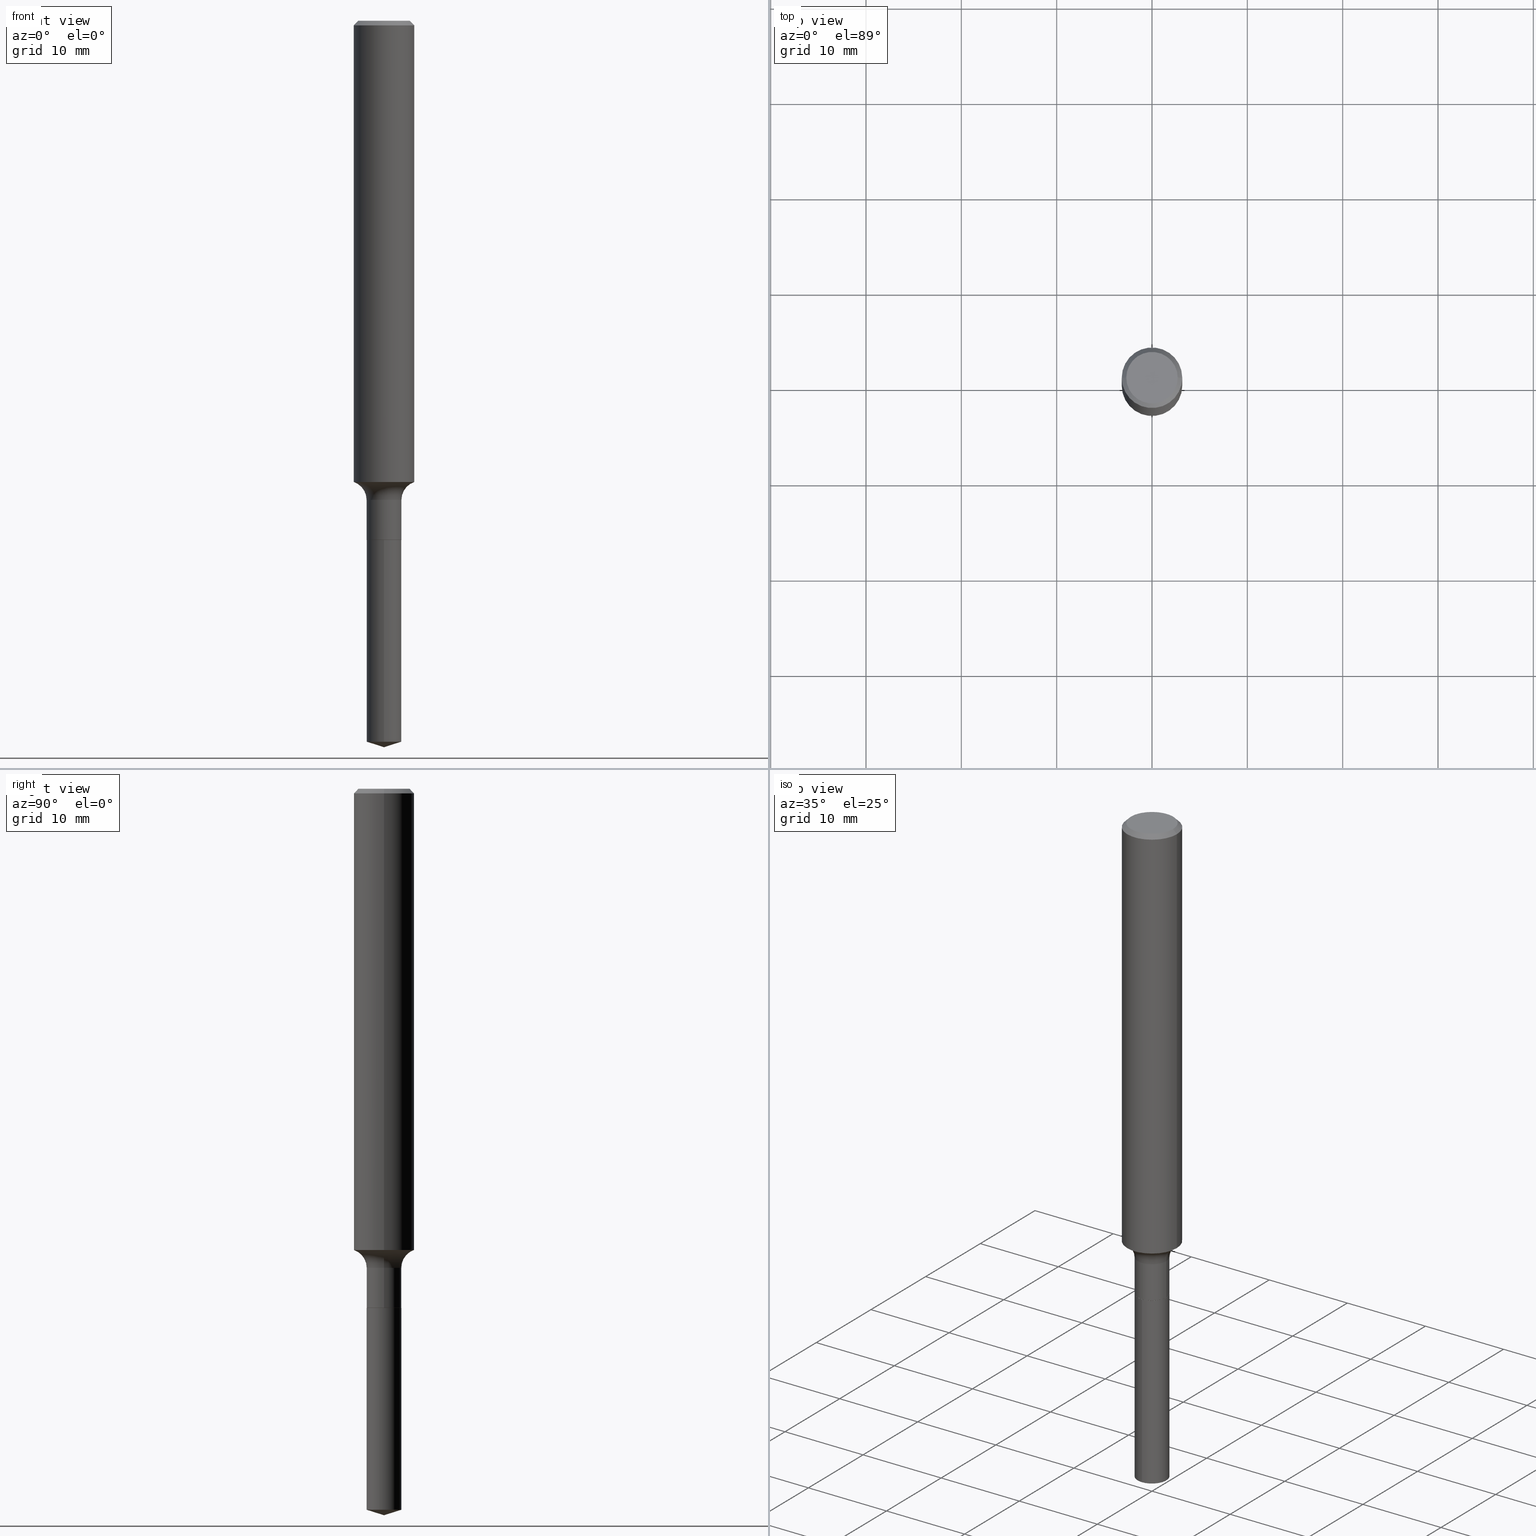
[diagram: canonical four-view strip — front | top / right | iso, engineering-drawing reading convention]
A machine part, canonical four-view strip (front | top / right | iso — engineering-drawing reading convention). The complete STEP part file that produces these views, byte-faithful:
ISO-10303-21;
HEADER;
FILE_DESCRIPTION (( 'STEP AP203' ),
    '1' );
FILE_NAME ('52318.STEP',
    '2024-04-19T13:37:03',
    ( '' ),
    ( '' ),
    'SwSTEP 2.0',
    'SolidWorks 2023',
    '' );
FILE_SCHEMA (( 'CONFIG_CONTROL_DESIGN' ));
ENDSEC;

DATA;
#1 = AXIS2_PLACEMENT_3D ( 'NONE', #87, #394, #33 ) ;
#2 = LINE ( 'NONE', #120, #138 ) ;
#3 = DIRECTION ( 'NONE',  ( -6.982962677686265133E-15, -1.000000000000000000, 3.794233324533699112E-15 ) ) ;
#4 = ADVANCED_FACE ( 'NONE', ( #207 ), #64, .F. ) ;
#5 = ORIENTED_EDGE ( 'NONE', *, *, #319, .F. ) ;
#6 = SECURITY_CLASSIFICATION_LEVEL ( 'unclassified' ) ;
#7 = DIRECTION ( 'NONE',  ( -2.445468806185136597E-29, 3.491481338843145583E-15, 1.000000000000000000 ) ) ;
#8 = ORIENTED_EDGE ( 'NONE', *, *, #269, .T. ) ;
#9 = VECTOR ( 'NONE', #38, 39.37007874015748143 ) ;
#10 = DIRECTION ( 'NONE',  ( -2.445468806185136877E-29, 3.491481338843145188E-15, 1.000000000000000000 ) ) ;
#11 = CIRCLE ( 'NONE', #84, 0.1062499999999999972 ) ;
#12 = CC_DESIGN_APPROVAL ( #259, ( #208 ) ) ;
#13 = ORIENTED_EDGE ( 'NONE', *, *, #169, .F. ) ;
#14 = DIRECTION ( 'NONE',  ( 1.000000000000000000, -6.982962677686265922E-15, 4.876176775795935793E-29 ) ) ;
#15 = APPLICATION_CONTEXT ( 'configuration controlled 3d designs of mechanical parts and assemblies' ) ;
#16 = CC_DESIGN_PERSON_AND_ORGANIZATION_ASSIGNMENT ( #294, #448, ( #71 ) ) ;
#17 = DIRECTION ( 'NONE',  ( -2.444809231722000196E-29, 3.492425887015004158E-15, 1.000000000000000000 ) ) ;
#18 = ORIENTED_EDGE ( 'NONE', *, *, #66, .F. ) ;
#19 = FACE_OUTER_BOUND ( 'NONE', #314, .T. ) ;
#20 = CIRCLE ( 'NONE', #25, 0.07199999999999999456 ) ;
#21 = ORIENTED_EDGE ( 'NONE', *, *, #414, .T. ) ;
#22 = ORIENTED_EDGE ( 'NONE', *, *, #188, .T. ) ;
#23 = ORIENTED_EDGE ( 'NONE', *, *, #66, .T. ) ;
#24 = EDGE_LOOP ( 'NONE', ( #245, #321, #402, #95 ) ) ;
#25 = AXIS2_PLACEMENT_3D ( 'NONE', #264, #121, #3 ) ;
#26 = ADVANCED_FACE ( 'NONE', ( #69 ), #370, .T. ) ;
#27 = CARTESIAN_POINT ( 'NONE',  ( 5.243085120460933877E-29, -7.485735990479705492E-15, -2.144000000000000572 ) ) ;
#28 = EDGE_CURVE ( 'NONE', #275, #53, #290, .T. ) ;
#29 = CARTESIAN_POINT ( 'NONE',  ( 5.243085120460933877E-29, -7.485735990479705492E-15, -2.144000000000000572 ) ) ;
#30 = FACE_OUTER_BOUND ( 'NONE', #385, .T. ) ;
#31 = APPROVAL ( #70, 'UNSPECIFIED' ) ;
#32 = CARTESIAN_POINT ( 'NONE',  ( 5.241862386057841075E-29, -7.483990249810284778E-15, -2.143500000000000405 ) ) ;
#33 = DIRECTION ( 'NONE',  ( 1.000000000000000000, -6.982962677686266711E-15, 0.000000000000000000 ) ) ;
#34 = ORIENTED_EDGE ( 'NONE', *, *, #246, .F. ) ;
#35 = VECTOR ( 'NONE', #481, 39.37007874015748143 ) ;
#36 = COORDINATED_UNIVERSAL_TIME_OFFSET ( 5, 0, .BEHIND. ) ;
#37 = LOCAL_TIME ( 9, 37, 3.000000000000000000, #454 ) ;
#38 = DIRECTION ( 'NONE',  ( -2.445468806185136877E-29, 3.491481338843145188E-15, 1.000000000000000000 ) ) ;
#39 = PERSON_AND_ORGANIZATION_ROLE ( 'creator' ) ;
#40 = CARTESIAN_POINT ( 'NONE',  ( 5.115907697473244558E-16, 0.07199999999999250055, -2.144000000000000572 ) ) ;
#41 = MECHANICAL_CONTEXT ( 'NONE', #15, 'mechanical' ) ;
#42 = DIRECTION ( 'NONE',  ( -2.445468806185136597E-29, 3.491481338843145583E-15, 1.000000000000000000 ) ) ;
#43 = DIRECTION ( 'NONE',  ( -6.982962677686265133E-15, -1.000000000000000000, 3.500519750498655128E-15 ) ) ;
#44 = VERTEX_POINT ( 'NONE', #215 ) ;
#45 = PERSON_AND_ORGANIZATION ( #229, #462 ) ;
#46 = DIRECTION ( 'NONE',  ( -2.445468806185136597E-29, 3.491481338843145583E-15, 1.000000000000000000 ) ) ;
#47 = ORIENTED_EDGE ( 'NONE', *, *, #360, .T. ) ;
#48 = CARTESIAN_POINT ( 'NONE',  ( 5.115907697473447690E-16, 0.07199999999998958622, -2.977298487200713772 ) ) ;
#49 = CARTESIAN_POINT ( 'NONE',  ( 4.838115486156674596E-29, -6.907546680767279844E-15, -1.978400000000000158 ) ) ;
#50 = AXIS2_PLACEMENT_3D ( 'NONE', #150, #187, #388 ) ;
#51 = DIRECTION ( 'NONE',  ( 1.000000000000000000, -6.982962677686264344E-15, 0.000000000000000000 ) ) ;
#52 = CARTESIAN_POINT ( 'NONE',  ( -0.07149999999999999412, -6.975048707237121813E-15, -2.144000000000000572 ) ) ;
#53 = VERTEX_POINT ( 'NONE', #292 ) ;
#54 = DATE_AND_TIME ( #349, #224 ) ;
#55 = ADVANCED_FACE ( 'NONE', ( #98 ), #372, .T. ) ;
#56 = CARTESIAN_POINT ( 'NONE',  ( 5.243085120460933877E-29, -7.485735990479705492E-15, -2.144000000000000572 ) ) ;
#57 = VERTEX_POINT ( 'NONE', #330 ) ;
#58 = VECTOR ( 'NONE', #440, 39.37007874015748143 ) ;
#59 = EDGE_LOOP ( 'NONE', ( #484, #162, #8, #62 ) ) ;
#60 = ORIENTED_EDGE ( 'NONE', *, *, #268, .T. ) ;
#61 = EDGE_CURVE ( 'NONE', #275, #244, #298, .T. ) ;
#62 = ORIENTED_EDGE ( 'NONE', *, *, #28, .F. ) ;
#63 = DIRECTION ( 'NONE',  ( -6.982962677686265133E-15, -1.000000000000000000, 3.794233324533699112E-15 ) ) ;
#64 = PLANE ( 'NONE',  #173 ) ;
#65 = DIRECTION ( 'NONE',  ( -6.982962677686265133E-15, -1.000000000000000000, 3.794233324533699112E-15 ) ) ;
#66 = EDGE_CURVE ( 'NONE', #244, #474, #322, .T. ) ;
#67 = CARTESIAN_POINT ( 'NONE',  ( 5.241862386057841075E-29, -7.483990249810284778E-15, -2.143500000000000405 ) ) ;
#68 = EDGE_CURVE ( 'NONE', #305, #44, #445, .T. ) ;
#69 = FACE_OUTER_BOUND ( 'NONE', #439, .T. ) ;
#70 = APPROVAL_STATUS ( 'not_yet_approved' ) ;
#71 = SECURITY_CLASSIFICATION ( '', '', #6 ) ;
#72 = CYLINDRICAL_SURFACE ( 'NONE', #91, 0.07199999999999999456 ) ;
#73 = PERSON_AND_ORGANIZATION_ROLE ( 'design_supplier' ) ;
#74 = CARTESIAN_POINT ( 'NONE',  ( 0.000000000000000000, 0.000000000000000000, 0.000000000000000000 ) ) ;
#75 = PERSON_AND_ORGANIZATION ( #229, #462 ) ;
#76 = DIRECTION ( 'NONE',  ( 1.000000000000000000, -6.982962677686269866E-15, 0.000000000000000000 ) ) ;
#77 = ORIENTED_EDGE ( 'NONE', *, *, #324, .F. ) ;
#78 = TOROIDAL_SURFACE ( 'NONE', #291, 0.1499999999999999944, 0.07800000000000002764 ) ;
#79 = APPROVAL_PERSON_ORGANIZATION ( #412, #31, #179 ) ;
#80 = DIRECTION ( 'NONE',  ( 2.438088387897960049E-29, -3.491481338843145188E-15, -1.000000000000000000 ) ) ;
#81 = CYLINDRICAL_SURFACE ( 'NONE', #216, 0.07199999999999998068 ) ;
#82 = VERTEX_POINT ( 'NONE', #447 ) ;
#83 = DIRECTION ( 'NONE',  ( 1.000000000000000000, -6.982962677686264344E-15, 0.000000000000000000 ) ) ;
#84 = AXIS2_PLACEMENT_3D ( 'NONE', #338, #46, #113 ) ;
#85 = CYLINDRICAL_SURFACE ( 'NONE', #392, 0.07199999999999999456 ) ;
#86 = ORIENTED_EDGE ( 'NONE', *, *, #178, .F. ) ;
#87 = CARTESIAN_POINT ( 'NONE',  ( 4.585254011597165626E-31, -6.546527510330947764E-17, -0.01875000000000014155 ) ) ;
#88 = ORIENTED_EDGE ( 'NONE', *, *, #109, .T. ) ;
#89 = CARTESIAN_POINT ( 'NONE',  ( -0.1250000000000000000, 8.074050596074738982E-16, -0.01875000000000014155 ) ) ;
#90 = ORIENTED_EDGE ( 'NONE', *, *, #414, .F. ) ;
#91 = AXIS2_PLACEMENT_3D ( 'NONE', #367, #105, #411 ) ;
#92 = ORIENTED_EDGE ( 'NONE', *, *, #465, .F. ) ;
#93 = CC_DESIGN_SECURITY_CLASSIFICATION ( #71, ( #374 ) ) ;
#94 = ADVANCED_FACE ( 'NONE', ( #140 ), #373, .F. ) ;
#95 = ORIENTED_EDGE ( 'NONE', *, *, #293, .F. ) ;
#96 = ORIENTED_EDGE ( 'NONE', *, *, #130, .F. ) ;
#97 = DIRECTION ( 'NONE',  ( 6.776566513254265237E-15, 0.9537169507482300412, 0.3007057995042633491 ) ) ;
#98 = FACE_OUTER_BOUND ( 'NONE', #125, .T. ) ;
#99 = VECTOR ( 'NONE', #139, 39.37007874015748143 ) ;
#100 = DIRECTION ( 'NONE',  ( -2.445468806185136597E-29, 3.491481338843145583E-15, 1.000000000000000000 ) ) ;
#101 = DIRECTION ( 'NONE',  ( -1.000000000000000000, 6.982962677686266711E-15, 0.000000000000000000 ) ) ;
#102 = LENGTH_MEASURE_WITH_UNIT ( LENGTH_MEASURE( 0.02539999999999999897 ), #146 );
#103 = DIRECTION ( 'NONE',  ( 1.000000000000000000, -6.982962677686266711E-15, 0.000000000000000000 ) ) ;
#104 = CALENDAR_DATE ( 2024, 19, 4 ) ;
#105 = DIRECTION ( 'NONE',  ( -2.444809231722000196E-29, 3.492425887015004158E-15, 1.000000000000000000 ) ) ;
#106 = CIRCLE ( 'NONE', #309, 0.1250000000000002498 ) ;
#107 = AXIS2_PLACEMENT_3D ( 'NONE', #180, #135, #288 ) ;
#108 = AXIS2_PLACEMENT_3D ( 'NONE', #27, #202, #467 ) ;
#109 = EDGE_CURVE ( 'NONE', #53, #275, #325, .T. ) ;
#110 = DIRECTION ( 'NONE',  ( -2.445468806185136597E-29, 3.491481338843145583E-15, 1.000000000000000000 ) ) ;
#111 = ADVANCED_FACE ( 'NONE', ( #334 ), #72, .T. ) ;
#112 =( NAMED_UNIT ( * ) PLANE_ANGLE_UNIT ( ) SI_UNIT ( $, .RADIAN. ) );
#113 = DIRECTION ( 'NONE',  ( 1.000000000000000000, -6.982962677686266711E-15, 4.875930095424100059E-29 ) ) ;
#114 = ORIENTED_EDGE ( 'NONE', *, *, #337, .T. ) ;
#115 = FACE_OUTER_BOUND ( 'NONE', #361, .T. ) ;
#116 = ORIENTED_EDGE ( 'NONE', *, *, #178, .T. ) ;
#117 = EDGE_CURVE ( 'NONE', #205, #189, #192, .T. ) ;
#118 = CIRCLE ( 'NONE', #364, 0.07199999999999999456 ) ;
#119 = APPROVAL_PERSON_ORGANIZATION ( #260, #259, #217 ) ;
#120 = CARTESIAN_POINT ( 'NONE',  ( 0.07149999999999999412, -7.985017821934272868E-15, -2.144000000000000572 ) ) ;
#121 = DIRECTION ( 'NONE',  ( -2.444809231722000196E-29, 3.492425887015004158E-15, 1.000000000000000000 ) ) ;
#122 = CARTESIAN_POINT ( 'NONE',  ( 4.657431911291187376E-29, -6.649578421968497231E-15, -1.904514954151736550 ) ) ;
#123 = CIRCLE ( 'NONE', #182, 0.07800000000000001377 ) ;
#124 = FACE_OUTER_BOUND ( 'NONE', #432, .T. ) ;
#125 = EDGE_LOOP ( 'NONE', ( #344, #137, #459, #358 ) ) ;
#126 = CARTESIAN_POINT ( 'NONE',  ( 4.585254011597165626E-31, -6.546527510330947764E-17, -0.01875000000000014155 ) ) ;
#127 = EDGE_LOOP ( 'NONE', ( #114, #22 ) ) ;
#128 = VERTEX_POINT ( 'NONE', #418 ) ;
#129 = EDGE_CURVE ( 'NONE', #165, #205, #489, .T. ) ;
#130 = EDGE_CURVE ( 'NONE', #82, #161, #332, .T. ) ;
#131 = CONICAL_SURFACE ( 'NONE', #339, 0.1250000000000000000, 0.7853981633974445042 ) ;
#132 = ORIENTED_EDGE ( 'NONE', *, *, #319, .T. ) ;
#133 = ORIENTED_EDGE ( 'NONE', *, *, #194, .F. ) ;
#134 = CARTESIAN_POINT ( 'NONE',  ( -0.1250000000000001110, 8.881784197001260212E-16, -6.148668862818637832E-30 ) ) ;
#135 = DIRECTION ( 'NONE',  ( -2.445468806185136597E-29, 3.491481338843145583E-15, 1.000000000000000000 ) ) ;
#136 = DIRECTION ( 'NONE',  ( -6.982962677686265133E-15, -1.000000000000000000, 0.000000000000000000 ) ) ;
#137 = ORIENTED_EDGE ( 'NONE', *, *, #129, .T. ) ;
#138 = VECTOR ( 'NONE', #230, 39.37007874015748143 ) ;
#139 = DIRECTION ( 'NONE',  ( -0.7071067811866138531, 7.493145998870593974E-15, 0.7071067811864811814 ) ) ;
#140 = FACE_OUTER_BOUND ( 'NONE', #151, .T. ) ;
#141 =( NAMED_UNIT ( * ) SI_UNIT ( $, .STERADIAN. ) SOLID_ANGLE_UNIT ( ) );
#142 = CARTESIAN_POINT ( 'NONE',  ( 7.280340954749214592E-29, -1.039596919878991748E-14, -2.977298487200713772 ) ) ;
#143 = EDGE_CURVE ( 'NONE', #82, #305, #265, .T. ) ;
#144 = DIRECTION ( 'NONE',  ( -2.445468806185136597E-29, 3.491481338843145583E-15, 1.000000000000000000 ) ) ;
#145 = AXIS2_PLACEMENT_3D ( 'NONE', #274, #393, #482 ) ;
#146 =( LENGTH_UNIT ( ) NAMED_UNIT ( * ) SI_UNIT ( $, .METRE. ) );
#147 = CARTESIAN_POINT ( 'NONE',  ( 0.1250000000000002776, -7.522448756679282148E-15, -1.904514954151736550 ) ) ;
#148 = APPROVAL_STATUS ( 'not_yet_approved' ) ;
#149 = CARTESIAN_POINT ( 'NONE',  ( -0.1250000000000000000, -2.469343428835775195E-15, -0.01875000000000014155 ) ) ;
#150 = CARTESIAN_POINT ( 'NONE',  ( 0.000000000000000000, 0.000000000000000000, 0.000000000000000000 ) ) ;
#151 = EDGE_LOOP ( 'NONE', ( #354, #21, #23, #133 ) ) ;
#152 = AXIS2_PLACEMENT_3D ( 'NONE', #486, #212, #136 ) ;
#153 =( GEOMETRIC_REPRESENTATION_CONTEXT ( 3 ) GLOBAL_UNCERTAINTY_ASSIGNED_CONTEXT ( ( #362 ) ) GLOBAL_UNIT_ASSIGNED_CONTEXT ( ( #263, #112, #141 ) ) REPRESENTATION_CONTEXT ( 'NONE', 'WORKASPACE' ) );
#154 = LINE ( 'NONE', #155, #413 ) ;
#155 = CARTESIAN_POINT ( 'NONE',  ( 7.334427695166000028E-29, -1.047727766104501129E-14, -3.000000000000000444 ) ) ;
#156 = DIRECTION ( 'NONE',  ( -2.445468806185136597E-29, 3.491481338843145583E-15, 1.000000000000000000 ) ) ;
#157 = ORIENTED_EDGE ( 'NONE', *, *, #231, .T. ) ;
#158 = CLOSED_SHELL ( 'NONE', ( #449, #55, #201, #94, #284, #369, #210, #26, #408, #232, #278, #352 ) ) ;
#159 = AXIS2_PLACEMENT_3D ( 'NONE', #142, #295, #252 ) ;
#160 = CARTESIAN_POINT ( 'NONE',  ( -0.07149999999999999412, -6.977697934411233014E-15, -2.144000000000000572 ) ) ;
#161 = VERTEX_POINT ( 'NONE', #296 ) ;
#162 = ORIENTED_EDGE ( 'NONE', *, *, #465, .T. ) ;
#163 = ORIENTED_EDGE ( 'NONE', *, *, #68, .T. ) ;
#164 = AXIS2_PLACEMENT_3D ( 'NONE', #453, #170, #254 ) ;
#165 = VERTEX_POINT ( 'NONE', #256 ) ;
#166 = CARTESIAN_POINT ( 'NONE',  ( -8.891649013474409962E-28, 1.270218296161805058E-13, 36.37007874015748143 ) ) ;
#167 = DIRECTION ( 'NONE',  ( 1.000000000000000000, -6.982962677686267499E-15, 4.876176775795936353E-29 ) ) ;
#168 = DIRECTION ( 'NONE',  ( -1.000000000000000000, 7.105427357601009747E-15, 0.000000000000000000 ) ) ;
#169 = EDGE_CURVE ( 'NONE', #57, #395, #223, .T. ) ;
#170 = DIRECTION ( 'NONE',  ( -2.445468806185136597E-29, 3.491481338843145583E-15, 1.000000000000000000 ) ) ;
#171 = CARTESIAN_POINT ( 'NONE',  ( -0.1499999999999999944, -5.841732577127129408E-15, -1.978400000000000158 ) ) ;
#172 = CARTESIAN_POINT ( 'NONE',  ( -0.07199999999999998068, 5.115907697472719966E-16, -3.541633264983530975E-30 ) ) ;
#173 = AXIS2_PLACEMENT_3D ( 'NONE', #29, #450, #218 ) ;
#174 = CIRCLE ( 'NONE', #404, 0.07800000000000001377 ) ;
#175 = AXIS2_PLACEMENT_3D ( 'NONE', #380, #410, #176 ) ;
#176 = DIRECTION ( 'NONE',  ( 1.000000000000000000, 0.000000000000000000, 0.000000000000000000 ) ) ;
#177 = ORIENTED_EDGE ( 'NONE', *, *, #336, .T. ) ;
#178 = EDGE_CURVE ( 'NONE', #365, #165, #389, .T. ) ;
#179 = APPROVAL_ROLE ( '' ) ;
#180 = CARTESIAN_POINT ( 'NONE',  ( 4.838115486156674596E-29, -6.907546680767279844E-15, -1.978400000000000158 ) ) ;
#181 = FACE_OUTER_BOUND ( 'NONE', #279, .T. ) ;
#182 = AXIS2_PLACEMENT_3D ( 'NONE', #171, #431, #168 ) ;
#183 = COORDINATED_UNIVERSAL_TIME_OFFSET ( 5, 0, .BEHIND. ) ;
#184 = DIRECTION ( 'NONE',  ( -6.982962677686266711E-15, -1.000000000000000000, 3.491481338843145583E-15 ) ) ;
#185 = ORIENTED_EDGE ( 'NONE', *, *, #293, .T. ) ;
#186 = APPROVAL_ROLE ( '' ) ;
#187 = DIRECTION ( 'NONE',  ( -2.445468806185136597E-29, 3.491481338843145583E-15, 1.000000000000000000 ) ) ;
#188 = EDGE_CURVE ( 'NONE', #44, #161, #20, .T. ) ;
#189 = VERTEX_POINT ( 'NONE', #149 ) ;
#190 = DIMENSIONAL_EXPONENTS ( 1.000000000000000000, 0.000000000000000000, 0.000000000000000000, 0.000000000000000000, 0.000000000000000000, 0.000000000000000000, 0.000000000000000000 ) ;
#191 = LINE ( 'NONE', #311, #281 ) ;
#192 = CIRCLE ( 'NONE', #233, 0.1250000000000000000 ) ;
#193 = FACE_OUTER_BOUND ( 'NONE', #203, .T. ) ;
#194 = EDGE_CURVE ( 'NONE', #318, #474, #174, .T. ) ;
#195 = DIRECTION ( 'NONE',  ( 1.000000000000000000, -6.982962677686266711E-15, 4.876176775795935232E-29 ) ) ;
#196 = ORIENTED_EDGE ( 'NONE', *, *, #429, .T. ) ;
#197 = SHAPE_DEFINITION_REPRESENTATION ( #397, #437 ) ;
#198 = DIRECTION ( 'NONE',  ( -2.444809231722000196E-29, 3.492425887015004158E-15, 1.000000000000000000 ) ) ;
#199 = ORIENTED_EDGE ( 'NONE', *, *, #429, .F. ) ;
#200 = CONICAL_SURFACE ( 'NONE', #248, 124.8659371009168240, 1.265363707695895679 ) ;
#201 = ADVANCED_FACE ( 'NONE', ( #384 ), #340, .T. ) ;
#202 = DIRECTION ( 'NONE',  ( -2.445468806185136597E-29, 3.491481338843145583E-15, 1.000000000000000000 ) ) ;
#203 = EDGE_LOOP ( 'NONE', ( #88, #346, #239, #469 ) ) ;
#204 = ORIENTED_EDGE ( 'NONE', *, *, #28, .T. ) ;
#205 = VERTEX_POINT ( 'NONE', #307 ) ;
#206 = CIRCLE ( 'NONE', #1, 0.1250000000000000000 ) ;
#207 = FACE_OUTER_BOUND ( 'NONE', #127, .T. ) ;
#208 = PRODUCT_DEFINITION ( 'UNKNOWN', '', #374, #390 ) ;
#209 = DIRECTION ( 'NONE',  ( -2.445468806185136877E-29, 3.491481338843145188E-15, 1.000000000000000000 ) ) ;
#210 = ADVANCED_FACE ( 'NONE', ( #115 ), #78, .F. ) ;
#211 = CARTESIAN_POINT ( 'NONE',  ( 4.585254011597165626E-31, -6.546527510330947764E-17, -0.01875000000000014155 ) ) ;
#212 = DIRECTION ( 'NONE',  ( -2.444809231722000196E-29, 3.492425887015004158E-15, 1.000000000000000000 ) ) ;
#213 = DIRECTION ( 'NONE',  ( 1.000000000000000000, -6.982962677686266711E-15, 0.000000000000000000 ) ) ;
#214 = APPROVAL_DATE_TIME ( #383, #259 ) ;
#215 = CARTESIAN_POINT ( 'NONE',  ( 5.115907697473449662E-16, 0.07199999999999250055, -2.144000000000000572 ) ) ;
#216 = AXIS2_PLACEMENT_3D ( 'NONE', #74, #228, #386 ) ;
#217 = APPROVAL_ROLE ( '' ) ;
#218 = DIRECTION ( 'NONE',  ( 6.982962677686265922E-15, 1.000000000000000000, -3.492425887015004553E-15 ) ) ;
#219 = DIRECTION ( 'NONE',  ( -6.659769872151639977E-15, -0.9537169507482278208, 0.3007057995042699550 ) ) ;
#220 = APPROVAL_STATUS ( 'not_yet_approved' ) ;
#221 = CARTESIAN_POINT ( 'NONE',  ( -7.955031918821654702E-47, 1.135767727816384474E-32, 3.252968060235159383E-18 ) ) ;
#222 = CLOSED_SHELL ( 'NONE', ( #111, #473, #323, #427, #4 ) ) ;
#223 = CIRCLE ( 'NONE', #476, 0.07149999999999999412 ) ;
#224 = LOCAL_TIME ( 9, 37, 3.000000000000000000, #490 ) ;
#225 = APPROVAL_DATE_TIME ( #422, #363 ) ;
#226 = CC_DESIGN_DATE_AND_TIME_ASSIGNMENT ( #371, #419, ( #208 ) ) ;
#227 = CARTESIAN_POINT ( 'NONE',  ( 5.243085120460933877E-29, -7.485735990479705492E-15, -2.144000000000000572 ) ) ;
#228 = DIRECTION ( 'NONE',  ( -2.445468806185136597E-29, 3.491481338843145583E-15, 1.000000000000000000 ) ) ;
#229 = PERSON ( 'UNSPECIFIED', 'UNSPECIFIED', 'UNSPECIFIED', ('UNSPECIFIED'), ('UNSPECIFIED'), ('UNSPECIFIED') ) ;
#230 = DIRECTION ( 'NONE',  ( 0.7071067811866138531, -2.468850131082952047E-15, 0.7071067811864811814 ) ) ;
#231 = EDGE_CURVE ( 'NONE', #165, #365, #11, .T. ) ;
#232 = ADVANCED_FACE ( 'NONE', ( #181 ), #425, .F. ) ;
#233 = AXIS2_PLACEMENT_3D ( 'NONE', #491, #144, #103 ) ;
#234 = CARTESIAN_POINT ( 'NONE',  ( 5.243085120460933877E-29, -7.485735990479705492E-15, -2.144000000000000572 ) ) ;
#235 = ORIENTED_EDGE ( 'NONE', *, *, #188, .F. ) ;
#236 = LINE ( 'NONE', #89, #485 ) ;
#237 = ORIENTED_EDGE ( 'NONE', *, *, #343, .T. ) ;
#238 = LINE ( 'NONE', #368, #315 ) ;
#239 = ORIENTED_EDGE ( 'NONE', *, *, #268, .F. ) ;
#240 = AXIS2_PLACEMENT_3D ( 'NONE', #416, #110, #167 ) ;
#241 = AXIS2_PLACEMENT_3D ( 'NONE', #407, #331, #195 ) ;
#242 = LOCAL_TIME ( 9, 37, 3.000000000000000000, #376 ) ;
#243 = ORIENTED_EDGE ( 'NONE', *, *, #387, .F. ) ;
#244 = VERTEX_POINT ( 'NONE', #267 ) ;
#245 = ORIENTED_EDGE ( 'NONE', *, *, #246, .T. ) ;
#246 = EDGE_CURVE ( 'NONE', #318, #475, #106, .T. ) ;
#247 = CARTESIAN_POINT ( 'NONE',  ( -0.1062499999999999972, 7.746724220558198188E-16, 6.505936120465015526E-18 ) ) ;
#248 = AXIS2_PLACEMENT_3D ( 'NONE', #420, #381, #43 ) ;
#249 = LOCAL_TIME ( 9, 37, 3.000000000000000000, #183 ) ;
#250 = DIRECTION ( 'NONE',  ( 0.7071067811865447972, -7.319954787623245001E-15, -0.7071067811865501263 ) ) ;
#251 = CARTESIAN_POINT ( 'NONE',  ( 5.243085120460933877E-29, -7.485735990479705492E-15, -2.144000000000000572 ) ) ;
#252 = DIRECTION ( 'NONE',  ( -6.982962677686265133E-15, -1.000000000000000000, 0.000000000000000000 ) ) ;
#253 = DATE_AND_TIME ( #104, #382 ) ;
#254 = DIRECTION ( 'NONE',  ( 1.000000000000000000, -6.982962677686266711E-15, 0.000000000000000000 ) ) ;
#255 = DATE_TIME_ROLE ( 'classification_date' ) ;
#256 = CARTESIAN_POINT ( 'NONE',  ( 0.1062499999999999972, -8.259777185439879685E-16, 6.505936120475800733E-18 ) ) ;
#257 = AXIS2_PLACEMENT_3D ( 'NONE', #378, #7, #455 ) ;
#258 = DIRECTION ( 'NONE',  ( -2.445468806185136597E-29, 3.491481338843145583E-15, 1.000000000000000000 ) ) ;
#259 = APPROVAL ( #148, 'UNSPECIFIED' ) ;
#260 = PERSON_AND_ORGANIZATION ( #229, #462 ) ;
#261 = FACE_OUTER_BOUND ( 'NONE', #401, .T. ) ;
#262 = ORIENTED_EDGE ( 'NONE', *, *, #480, .F. ) ;
#263 =( CONVERSION_BASED_UNIT ( 'INCH', #102 ) LENGTH_UNIT ( ) NAMED_UNIT ( #190 ) );
#264 = CARTESIAN_POINT ( 'NONE',  ( 5.243085120460933877E-29, -7.485735990479705492E-15, -2.144000000000000572 ) ) ;
#265 = CIRCLE ( 'NONE', #159, 0.07199999999999999456 ) ;
#266 = CONICAL_SURFACE ( 'NONE', #282, 0.07149999999999999412, 0.7853981633975420928 ) ;
#267 = CARTESIAN_POINT ( 'NONE',  ( -0.07199999999999998068, -6.684177695541511301E-15, -1.978400000000000158 ) ) ;
#268 = EDGE_CURVE ( 'NONE', #474, #244, #355, .T. ) ;
#269 = EDGE_CURVE ( 'NONE', #57, #53, #2, .T. ) ;
#270 = DIRECTION ( 'NONE',  ( -1.000000000000000000, 6.982962677686265922E-15, -4.876176775795935793E-29 ) ) ;
#271 = CC_DESIGN_PERSON_AND_ORGANIZATION_ASSIGNMENT ( #488, #39, ( #374 ) ) ;
#272 = PLANE ( 'NONE',  #423 ) ;
#273 = ORIENTED_EDGE ( 'NONE', *, *, #129, .F. ) ;
#274 = CARTESIAN_POINT ( 'NONE',  ( 5.243085120460933877E-29, -7.485735990479705492E-15, -2.144000000000000572 ) ) ;
#275 = VERTEX_POINT ( 'NONE', #312 ) ;
#276 = DIRECTION ( 'NONE',  ( -2.444809231722000196E-29, 3.492425887015004158E-15, 1.000000000000000000 ) ) ;
#277 = ORIENTED_EDGE ( 'NONE', *, *, #269, .F. ) ;
#278 = ADVANCED_FACE ( 'NONE', ( #424 ), #272, .F. ) ;
#279 = EDGE_LOOP ( 'NONE', ( #116, #157 ) ) ;
#280 = AXIS2_PLACEMENT_3D ( 'NONE', #211, #328, #101 ) ;
#281 = VECTOR ( 'NONE', #10, 39.37007874015748143 ) ;
#282 = AXIS2_PLACEMENT_3D ( 'NONE', #56, #156, #313 ) ;
#283 = ORIENTED_EDGE ( 'NONE', *, *, #68, .F. ) ;
#284 = ADVANCED_FACE ( 'NONE', ( #193 ), #81, .T. ) ;
#285 = EDGE_LOOP ( 'NONE', ( #5, #196, #428 ) ) ;
#286 = LINE ( 'NONE', #160, #99 ) ;
#287 = CC_DESIGN_PERSON_AND_ORGANIZATION_ASSIGNMENT ( #341, #73, ( #374 ) ) ;
#288 = DIRECTION ( 'NONE',  ( 1.000000000000000000, -6.982962677686264344E-15, 4.883557194083111780E-29 ) ) ;
#289 = DIRECTION ( 'NONE',  ( -0.7071067811865447972, 2.468850131082228662E-15, -0.7071067811865501263 ) ) ;
#290 = CIRCLE ( 'NONE', #308, 0.07199999999999998068 ) ;
#291 = AXIS2_PLACEMENT_3D ( 'NONE', #460, #42, #304 ) ;
#292 = CARTESIAN_POINT ( 'NONE',  ( 0.07199999999999998068, -7.986763562603695160E-15, -2.143500000000000405 ) ) ;
#293 = EDGE_CURVE ( 'NONE', #318, #205, #191, .T. ) ;
#294 = PERSON_AND_ORGANIZATION ( #229, #462 ) ;
#295 = DIRECTION ( 'NONE',  ( -2.444809231722000196E-29, 3.492425887015004158E-15, 1.000000000000000000 ) ) ;
#296 = CARTESIAN_POINT ( 'NONE',  ( -5.027733127933587124E-16, -0.07200000000000747469, -2.144000000000000128 ) ) ;
#297 = PERSON_AND_ORGANIZATION ( #229, #462 ) ;
#298 = LINE ( 'NONE', #172, #9 ) ;
#299 = CIRCLE ( 'NONE', #152, 0.07199999999999999456 ) ;
#300 = PERSON_AND_ORGANIZATION_ROLE ( 'creator' ) ;
#301 = CC_DESIGN_PERSON_AND_ORGANIZATION_ASSIGNMENT ( #45, #492, ( #446 ) ) ;
#302 = DIRECTION ( 'NONE',  ( 1.000000000000000000, -6.982962677686273021E-15, 0.000000000000000000 ) ) ;
#303 = EDGE_LOOP ( 'NONE', ( #283, #472, #478, #235 ) ) ;
#304 = DIRECTION ( 'NONE',  ( 1.000000000000000000, -6.982962677686264344E-15, 4.883557194083111780E-29 ) ) ;
#305 = VERTEX_POINT ( 'NONE', #48 ) ;
#306 = MANIFOLD_SOLID_BREP ( 'Body-Move/Copy2[2]', #158 ) ;
#307 = CARTESIAN_POINT ( 'NONE',  ( 0.1250000000000000000, -9.383356098140928781E-16, -0.01875000000000014155 ) ) ;
#308 = AXIS2_PLACEMENT_3D ( 'NONE', #32, #377, #375 ) ;
#309 = AXIS2_PLACEMENT_3D ( 'NONE', #122, #348, #83 ) ;
#310 = CC_DESIGN_APPROVAL ( #363, ( #374 ) ) ;
#311 = CARTESIAN_POINT ( 'NONE',  ( 0.1250000000000001110, -8.728703347107842263E-16, 6.095220969744926047E-30 ) ) ;
#312 = CARTESIAN_POINT ( 'NONE',  ( -0.07199999999999999456, -6.684177695541511301E-15, -2.143500000000000405 ) ) ;
#313 = DIRECTION ( 'NONE',  ( 1.000000000000000000, -6.982962677686273021E-15, 0.000000000000000000 ) ) ;
#314 = EDGE_LOOP ( 'NONE', ( #273, #86, #177, #438 ) ) ;
#315 = VECTOR ( 'NONE', #209, 39.37007874015748143 ) ;
#316 = VECTOR ( 'NONE', #97, 39.37007874015748854 ) ;
#317 = CARTESIAN_POINT ( 'NONE',  ( 7.337280750924404335E-29, -1.047322743848408352E-14, -3.000000000000000444 ) ) ;
#318 = VERTEX_POINT ( 'NONE', #147 ) ;
#319 = EDGE_CURVE ( 'NONE', #128, #82, #154, .T. ) ;
#320 = ORIENTED_EDGE ( 'NONE', *, *, #421, .T. ) ;
#321 = ORIENTED_EDGE ( 'NONE', *, *, #480, .T. ) ;
#322 = CIRCLE ( 'NONE', #164, 0.07199999999999998068 ) ;
#323 = ADVANCED_FACE ( 'NONE', ( #261 ), #200, .T. ) ;
#324 = EDGE_CURVE ( 'NONE', #305, #82, #299, .T. ) ;
#325 = CIRCLE ( 'NONE', #452, 0.07199999999999998068 ) ;
#326 = ORIENTED_EDGE ( 'NONE', *, *, #337, .F. ) ;
#327 = CARTESIAN_POINT ( 'NONE',  ( -0.1250000000000002776, -5.761400002268369633E-15, -1.904514954151736550 ) ) ;
#328 = DIRECTION ( 'NONE',  ( 2.445468806185136597E-29, -3.491481338843145583E-15, -1.000000000000000000 ) ) ;
#329 = APPLICATION_CONTEXT ( 'configuration controlled 3d designs of mechanical parts and assemblies' ) ;
#330 = CARTESIAN_POINT ( 'NONE',  ( 0.07149999999999999412, -7.985017821934272868E-15, -2.144000000000000572 ) ) ;
#331 = DIRECTION ( 'NONE',  ( -2.445468806185136597E-29, 3.491481338843145583E-15, 1.000000000000000000 ) ) ;
#332 = LINE ( 'NONE', #487, #347 ) ;
#333 = APPLICATION_PROTOCOL_DEFINITION ( 'international standard', 'config_control_design', 1994, #15 ) ;
#334 = FACE_OUTER_BOUND ( 'NONE', #351, .T. ) ;
#335 = CALENDAR_DATE ( 2024, 19, 4 ) ;
#336 = EDGE_CURVE ( 'NONE', #365, #189, #236, .T. ) ;
#337 = EDGE_CURVE ( 'NONE', #161, #44, #118, .T. ) ;
#338 = CARTESIAN_POINT ( 'NONE',  ( -1.591006383764330940E-46, 2.271535455632768948E-32, 6.505936120470318766E-18 ) ) ;
#339 = AXIS2_PLACEMENT_3D ( 'NONE', #126, #350, #405 ) ;
#340 = CYLINDRICAL_SURFACE ( 'NONE', #50, 0.1250000000000001110 ) ;
#341 = PERSON_AND_ORGANIZATION ( #229, #462 ) ;
#342 = DIRECTION ( 'NONE',  ( 1.000000000000000000, -6.982962677686266711E-15, 0.000000000000000000 ) ) ;
#343 = EDGE_CURVE ( 'NONE', #53, #474, #238, .T. ) ;
#344 = ORIENTED_EDGE ( 'NONE', *, *, #231, .F. ) ;
#345 = DIRECTION ( 'NONE',  ( -2.445468806185136597E-29, 3.491481338843145583E-15, 1.000000000000000000 ) ) ;
#346 = ORIENTED_EDGE ( 'NONE', *, *, #61, .T. ) ;
#347 = VECTOR ( 'NONE', #406, 39.37007874015748143 ) ;
#348 = DIRECTION ( 'NONE',  ( -2.445468806185136597E-29, 3.491481338843145583E-15, 1.000000000000000000 ) ) ;
#349 = CALENDAR_DATE ( 2024, 19, 4 ) ;
#350 = DIRECTION ( 'NONE',  ( 2.445468806185136597E-29, -3.491481338843145583E-15, -1.000000000000000000 ) ) ;
#351 = EDGE_LOOP ( 'NONE', ( #359, #163, #326, #96 ) ) ;
#352 = ADVANCED_FACE ( 'NONE', ( #444 ), #399, .T. ) ;
#353 = CARTESIAN_POINT ( 'NONE',  ( 4.657431911291187376E-29, -6.649578421968497231E-15, -1.904514954151736550 ) ) ;
#354 = ORIENTED_EDGE ( 'NONE', *, *, #360, .F. ) ;
#355 = CIRCLE ( 'NONE', #443, 0.07199999999999998068 ) ;
#356 = CC_DESIGN_APPROVAL ( #31, ( #71 ) ) ;
#357 = CARTESIAN_POINT ( 'NONE',  ( 0.07199999999999998068, -7.410319993560691805E-15, -1.978400000000000158 ) ) ;
#358 = ORIENTED_EDGE ( 'NONE', *, *, #336, .F. ) ;
#359 = ORIENTED_EDGE ( 'NONE', *, *, #143, .T. ) ;
#360 = EDGE_CURVE ( 'NONE', #475, #318, #468, .T. ) ;
#361 = EDGE_LOOP ( 'NONE', ( #90, #34, #398, #60 ) ) ;
#362 = UNCERTAINTY_MEASURE_WITH_UNIT (LENGTH_MEASURE( 1.000000000000000082E-05 ), #263, 'distance_accuracy_value', 'NONE');
#363 = APPROVAL ( #220, 'UNSPECIFIED' ) ;
#364 = AXIS2_PLACEMENT_3D ( 'NONE', #251, #198, #65 ) ;
#365 = VERTEX_POINT ( 'NONE', #247 ) ;
#366 = LINE ( 'NONE', #317, #316 ) ;
#367 = CARTESIAN_POINT ( 'NONE',  ( 5.243085120460933877E-29, -7.485735990479705492E-15, -2.144000000000000572 ) ) ;
#368 = CARTESIAN_POINT ( 'NONE',  ( 0.07199999999999998068, -5.027733127934110730E-16, 3.510847278573072426E-30 ) ) ;
#369 = ADVANCED_FACE ( 'NONE', ( #124 ), #396, .T. ) ;
#370 = CYLINDRICAL_SURFACE ( 'NONE', #240, 0.1250000000000001110 ) ;
#371 = DATE_AND_TIME ( #335, #37 ) ;
#372 = CONICAL_SURFACE ( 'NONE', #280, 0.1250000000000000000, 0.7853981633974445042 ) ;
#373 = TOROIDAL_SURFACE ( 'NONE', #107, 0.1499999999999999944, 0.07800000000000002764 ) ;
#374 = PRODUCT_DEFINITION_FORMATION_WITH_SPECIFIED_SOURCE ( 'ANY', '', #446, .NOT_KNOWN. ) ;
#375 = DIRECTION ( 'NONE',  ( 1.000000000000000000, -6.982962677686266711E-15, 0.000000000000000000 ) ) ;
#376 = COORDINATED_UNIVERSAL_TIME_OFFSET ( 5, 0, .BEHIND. ) ;
#377 = DIRECTION ( 'NONE',  ( -2.445468806185136597E-29, 3.491481338843145583E-15, 1.000000000000000000 ) ) ;
#378 = CARTESIAN_POINT ( 'NONE',  ( -1.591006383764330940E-46, 2.271535455632768948E-32, 6.505936120470318766E-18 ) ) ;
#379 = CC_DESIGN_DATE_AND_TIME_ASSIGNMENT ( #253, #255, ( #71 ) ) ;
#380 = CARTESIAN_POINT ( 'NONE',  ( 0.000000000000000000, 0.000000000000000000, 0.000000000000000000 ) ) ;
#381 = DIRECTION ( 'NONE',  ( -2.444809231722000196E-29, 3.492425887015004158E-15, 1.000000000000000000 ) ) ;
#382 = LOCAL_TIME ( 9, 37, 3.000000000000000000, #36 ) ;
#383 = DATE_AND_TIME ( #457, #242 ) ;
#384 = FACE_OUTER_BOUND ( 'NONE', #24, .T. ) ;
#385 = EDGE_LOOP ( 'NONE', ( #403, #320, #434, #277 ) ) ;
#386 = DIRECTION ( 'NONE',  ( 1.000000000000000000, -6.982962677686266711E-15, 4.876176775795935232E-29 ) ) ;
#387 = EDGE_CURVE ( 'NONE', #189, #205, #206, .T. ) ;
#388 = DIRECTION ( 'NONE',  ( 1.000000000000000000, -6.982962677686267499E-15, 4.876176775795936353E-29 ) ) ;
#389 = CIRCLE ( 'NONE', #257, 0.1062499999999999972 ) ;
#390 = DESIGN_CONTEXT ( 'detailed design', #329, 'design' ) ;
#391 = AXIS2_PLACEMENT_3D ( 'NONE', #221, #80, #270 ) ;
#392 = AXIS2_PLACEMENT_3D ( 'NONE', #234, #17, #63 ) ;
#393 = DIRECTION ( 'NONE',  ( -2.445468806185136597E-29, 3.491481338843145583E-15, 1.000000000000000000 ) ) ;
#394 = DIRECTION ( 'NONE',  ( -2.445468806185136597E-29, 3.491481338843145583E-15, 1.000000000000000000 ) ) ;
#395 = VERTEX_POINT ( 'NONE', #52 ) ;
#396 = CYLINDRICAL_SURFACE ( 'NONE', #241, 0.07199999999999998068 ) ;
#397 = PRODUCT_DEFINITION_SHAPE ( 'NONE', 'NONE',  #208 ) ;
#398 = ORIENTED_EDGE ( 'NONE', *, *, #194, .T. ) ;
#399 = CONICAL_SURFACE ( 'NONE', #145, 0.07149999999999999412, 0.7853981633975420928 ) ;
#400 = AXIS2_PLACEMENT_3D ( 'NONE', #166, #276, #433 ) ;
#401 = EDGE_LOOP ( 'NONE', ( #199, #132, #77 ) ) ;
#402 = ORIENTED_EDGE ( 'NONE', *, *, #117, .F. ) ;
#403 = ORIENTED_EDGE ( 'NONE', *, *, #169, .T. ) ;
#404 = AXIS2_PLACEMENT_3D ( 'NONE', #463, #184, #76 ) ;
#405 = DIRECTION ( 'NONE',  ( -1.000000000000000000, 6.982962677686266711E-15, 0.000000000000000000 ) ) ;
#406 = DIRECTION ( 'NONE',  ( -2.444809231721999916E-29, 3.492425887015004553E-15, 1.000000000000000000 ) ) ;
#407 = CARTESIAN_POINT ( 'NONE',  ( 0.000000000000000000, 0.000000000000000000, 0.000000000000000000 ) ) ;
#408 = ADVANCED_FACE ( 'NONE', ( #19 ), #131, .T. ) ;
#409 = CARTESIAN_POINT ( 'NONE',  ( 5.243085120460933877E-29, -7.485735990479705492E-15, -2.144000000000000572 ) ) ;
#410 = DIRECTION ( 'NONE',  ( 0.000000000000000000, 0.000000000000000000, 1.000000000000000000 ) ) ;
#411 = DIRECTION ( 'NONE',  ( -6.982962677686265133E-15, -1.000000000000000000, 3.794233324533699112E-15 ) ) ;
#412 = PERSON_AND_ORGANIZATION ( #229, #462 ) ;
#413 = VECTOR ( 'NONE', #219, 39.37007874015748854 ) ;
#414 = EDGE_CURVE ( 'NONE', #475, #244, #123, .T. ) ;
#415 = APPROVAL_PERSON_ORGANIZATION ( #75, #363, #186 ) ;
#416 = CARTESIAN_POINT ( 'NONE',  ( 0.000000000000000000, 0.000000000000000000, 0.000000000000000000 ) ) ;
#417 = APPLICATION_PROTOCOL_DEFINITION ( 'international standard', 'config_control_design', 1994, #329 ) ;
#418 = CARTESIAN_POINT ( 'NONE',  ( 7.334427695166001149E-29, -1.047727766104501129E-14, -3.000000000000000444 ) ) ;
#419 = DATE_TIME_ROLE ( 'creation_date' ) ;
#420 = CARTESIAN_POINT ( 'NONE',  ( -8.891649013474409962E-28, 1.270218296161805058E-13, 36.37007874015748143 ) ) ;
#421 = EDGE_CURVE ( 'NONE', #395, #275, #286, .T. ) ;
#422 = DATE_AND_TIME ( #451, #249 ) ;
#423 = AXIS2_PLACEMENT_3D ( 'NONE', #227, #458, #14 ) ;
#424 = FACE_OUTER_BOUND ( 'NONE', #435, .T. ) ;
#425 = PLANE ( 'NONE',  #391 ) ;
#426 = FACE_OUTER_BOUND ( 'NONE', #303, .T. ) ;
#427 = ADVANCED_FACE ( 'NONE', ( #426 ), #85, .T. ) ;
#428 = ORIENTED_EDGE ( 'NONE', *, *, #143, .F. ) ;
#429 = EDGE_CURVE ( 'NONE', #128, #305, #366, .T. ) ;
#430 = CONICAL_SURFACE ( 'NONE', #400, 124.8659371009168240, 1.265363707695895679 ) ;
#431 = DIRECTION ( 'NONE',  ( 7.105427357601001859E-15, 1.000000000000000000, -3.491481338843145583E-15 ) ) ;
#432 = EDGE_LOOP ( 'NONE', ( #456, #204, #237, #18 ) ) ;
#433 = DIRECTION ( 'NONE',  ( -6.982962677686265133E-15, -1.000000000000000000, 3.500519750498655128E-15 ) ) ;
#434 = ORIENTED_EDGE ( 'NONE', *, *, #109, .F. ) ;
#435 = EDGE_LOOP ( 'NONE', ( #13, #92 ) ) ;
#436 = VECTOR ( 'NONE', #250, 39.37007874015748854 ) ;
#437 = ADVANCED_BREP_SHAPE_REPRESENTATION ( '52318', ( #477, #306, #175 ), #153 ) ;
#438 = ORIENTED_EDGE ( 'NONE', *, *, #387, .T. ) ;
#439 = EDGE_LOOP ( 'NONE', ( #262, #47, #185, #243 ) ) ;
#440 = DIRECTION ( 'NONE',  ( -2.445468806185136877E-29, 3.491481338843145188E-15, 1.000000000000000000 ) ) ;
#441 = CARTESIAN_POINT ( 'NONE',  ( 0.1250000000000000000, -9.230275248247509846E-16, -0.01875000000000014155 ) ) ;
#442 = PRODUCT_RELATED_PRODUCT_CATEGORY ( 'detail', '', ( #446 ) ) ;
#443 = AXIS2_PLACEMENT_3D ( 'NONE', #49, #466, #342 ) ;
#444 = FACE_OUTER_BOUND ( 'NONE', #59, .T. ) ;
#445 = LINE ( 'NONE', #40, #35 ) ;
#446 = PRODUCT ( '52318', '52318', '', ( #41 ) ) ;
#447 = CARTESIAN_POINT ( 'NONE',  ( -5.027733127933383006E-16, -0.07200000000001038902, -2.977298487200713772 ) ) ;
#448 = PERSON_AND_ORGANIZATION_ROLE ( 'classification_officer' ) ;
#449 = ADVANCED_FACE ( 'NONE', ( #30 ), #266, .T. ) ;
#450 = DIRECTION ( 'NONE',  ( 2.444809231721999355E-29, -3.492425887015004553E-15, -1.000000000000000000 ) ) ;
#451 = CALENDAR_DATE ( 2024, 19, 4 ) ;
#452 = AXIS2_PLACEMENT_3D ( 'NONE', #67, #258, #213 ) ;
#453 = CARTESIAN_POINT ( 'NONE',  ( 4.838115486156674596E-29, -6.907546680767279844E-15, -1.978400000000000158 ) ) ;
#454 = COORDINATED_UNIVERSAL_TIME_OFFSET ( 5, 0, .BEHIND. ) ;
#455 = DIRECTION ( 'NONE',  ( 1.000000000000000000, -6.982962677686266711E-15, 4.875930095424100059E-29 ) ) ;
#456 = ORIENTED_EDGE ( 'NONE', *, *, #61, .F. ) ;
#457 = CALENDAR_DATE ( 2024, 19, 4 ) ;
#458 = DIRECTION ( 'NONE',  ( -2.438088387897960049E-29, 3.491481338843145188E-15, 1.000000000000000000 ) ) ;
#459 = ORIENTED_EDGE ( 'NONE', *, *, #117, .T. ) ;
#460 = CARTESIAN_POINT ( 'NONE',  ( 4.838115486156674596E-29, -6.907546680767279844E-15, -1.978400000000000158 ) ) ;
#461 = AXIS2_PLACEMENT_3D ( 'NONE', #353, #100, #51 ) ;
#462 = ORGANIZATION ( 'UNSPECIFIED', 'UNSPECIFIED', '' ) ;
#463 = CARTESIAN_POINT ( 'NONE',  ( 0.1499999999999999944, -7.954991082420219851E-15, -1.978400000000000158 ) ) ;
#464 = APPROVAL_DATE_TIME ( #54, #31 ) ;
#465 = EDGE_CURVE ( 'NONE', #395, #57, #470, .T. ) ;
#466 = DIRECTION ( 'NONE',  ( -2.445468806185136597E-29, 3.491481338843145583E-15, 1.000000000000000000 ) ) ;
#467 = DIRECTION ( 'NONE',  ( 1.000000000000000000, -6.982962677686273021E-15, 0.000000000000000000 ) ) ;
#468 = CIRCLE ( 'NONE', #461, 0.1250000000000002498 ) ;
#469 = ORIENTED_EDGE ( 'NONE', *, *, #343, .F. ) ;
#470 = CIRCLE ( 'NONE', #108, 0.07149999999999999412 ) ;
#471 = FACE_OUTER_BOUND ( 'NONE', #285, .T. ) ;
#472 = ORIENTED_EDGE ( 'NONE', *, *, #324, .T. ) ;
#473 = ADVANCED_FACE ( 'NONE', ( #471 ), #430, .T. ) ;
#474 = VERTEX_POINT ( 'NONE', #357 ) ;
#475 = VERTEX_POINT ( 'NONE', #327 ) ;
#476 = AXIS2_PLACEMENT_3D ( 'NONE', #409, #345, #302 ) ;
#477 = MANIFOLD_SOLID_BREP ( 'Body-Move/Copy2[1]', #222 ) ;
#478 = ORIENTED_EDGE ( 'NONE', *, *, #130, .T. ) ;
#479 = LINE ( 'NONE', #134, #58 ) ;
#480 = EDGE_CURVE ( 'NONE', #475, #189, #479, .T. ) ;
#481 = DIRECTION ( 'NONE',  ( -2.444809231721999916E-29, 3.492425887015004553E-15, 1.000000000000000000 ) ) ;
#482 = DIRECTION ( 'NONE',  ( 1.000000000000000000, -6.982962677686273021E-15, 0.000000000000000000 ) ) ;
#483 = CC_DESIGN_PERSON_AND_ORGANIZATION_ASSIGNMENT ( #297, #300, ( #208 ) ) ;
#484 = ORIENTED_EDGE ( 'NONE', *, *, #421, .F. ) ;
#485 = VECTOR ( 'NONE', #289, 39.37007874015748854 ) ;
#486 = CARTESIAN_POINT ( 'NONE',  ( 7.280340954749214592E-29, -1.039596919878991748E-14, -2.977298487200713772 ) ) ;
#487 = CARTESIAN_POINT ( 'NONE',  ( -5.027733127933587124E-16, -0.07200000000000747469, -2.144000000000000128 ) ) ;
#488 = PERSON_AND_ORGANIZATION ( #229, #462 ) ;
#489 = LINE ( 'NONE', #441, #436 ) ;
#490 = COORDINATED_UNIVERSAL_TIME_OFFSET ( 5, 0, .BEHIND. ) ;
#491 = CARTESIAN_POINT ( 'NONE',  ( 4.585254011597165626E-31, -6.546527510330947764E-17, -0.01875000000000014155 ) ) ;
#492 = PERSON_AND_ORGANIZATION_ROLE ( 'design_owner' ) ;
ENDSEC;
END-ISO-10303-21;
